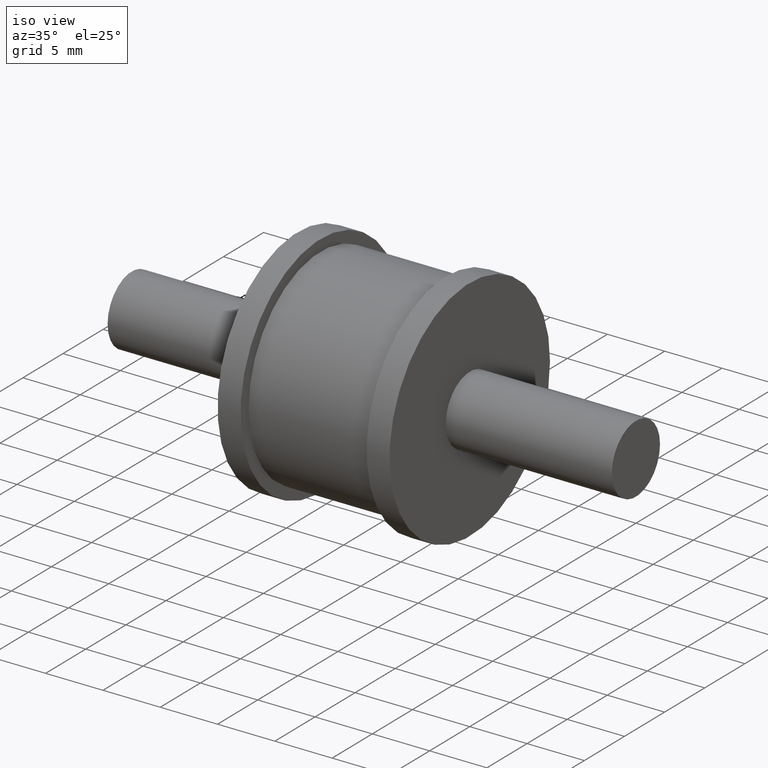
[diagram: clean part render]
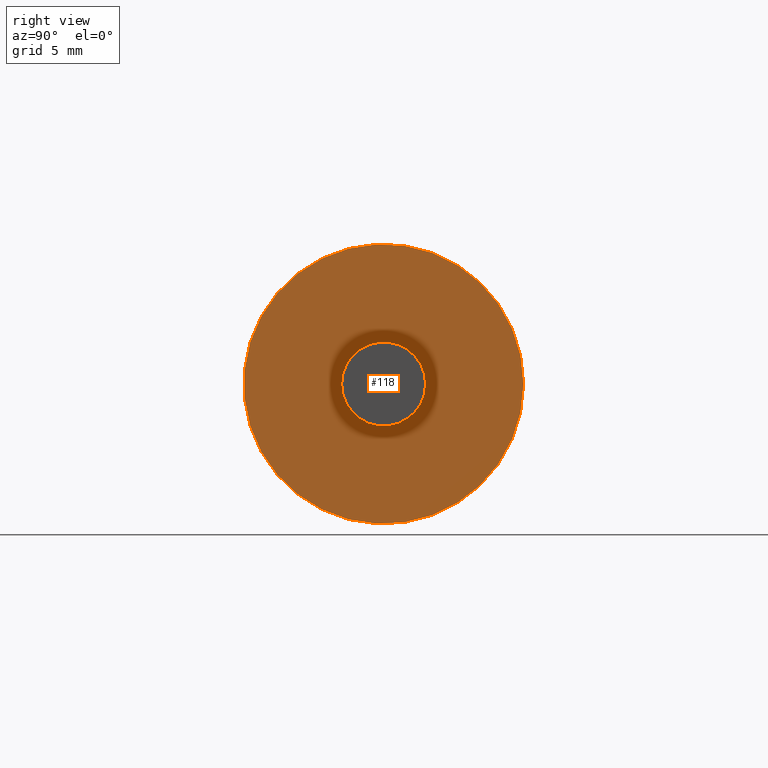
[diagram: tour spotlight — one face highlighted and labeled with its STEP entity id]
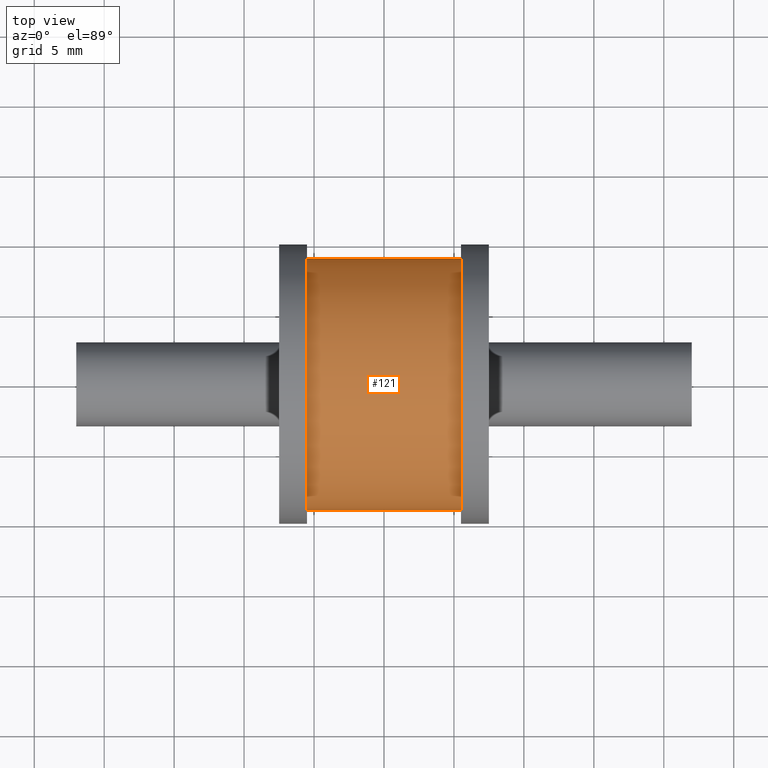
[diagram: tour spotlight — one face highlighted and labeled with its STEP entity id]
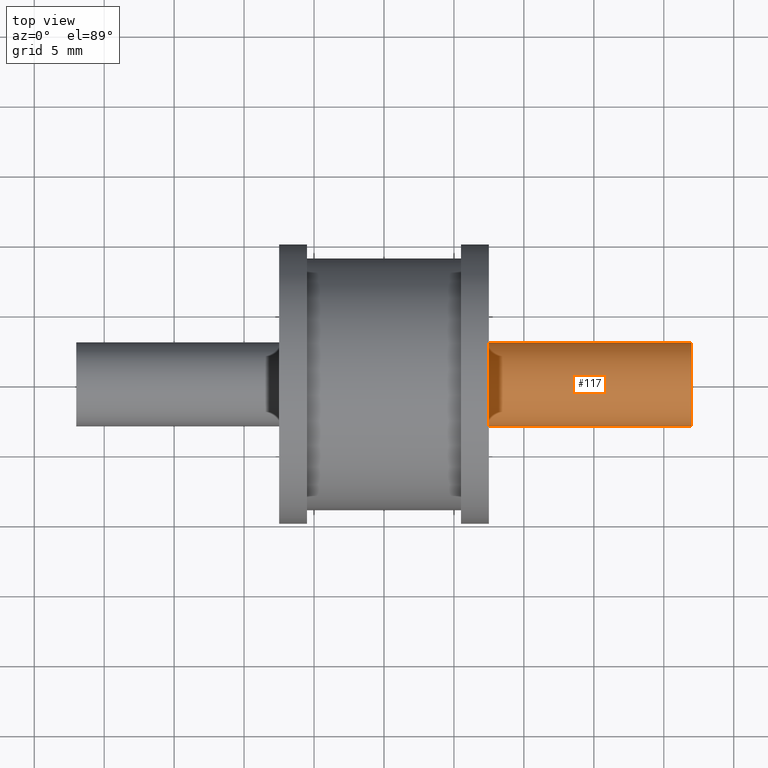
[diagram: tour spotlight — one face highlighted and labeled with its STEP entity id]
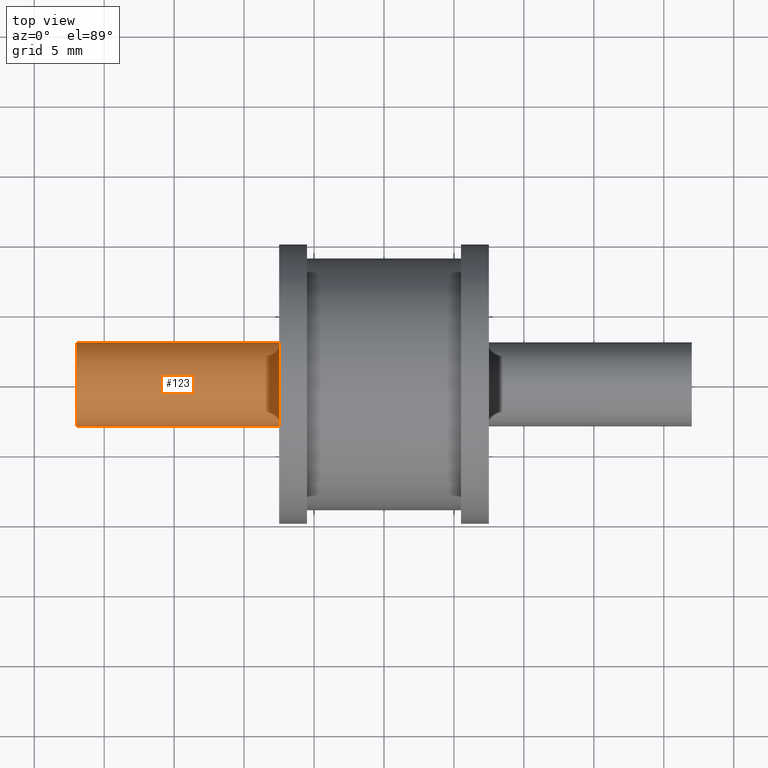
[diagram: tour spotlight — one face highlighted and labeled with its STEP entity id]
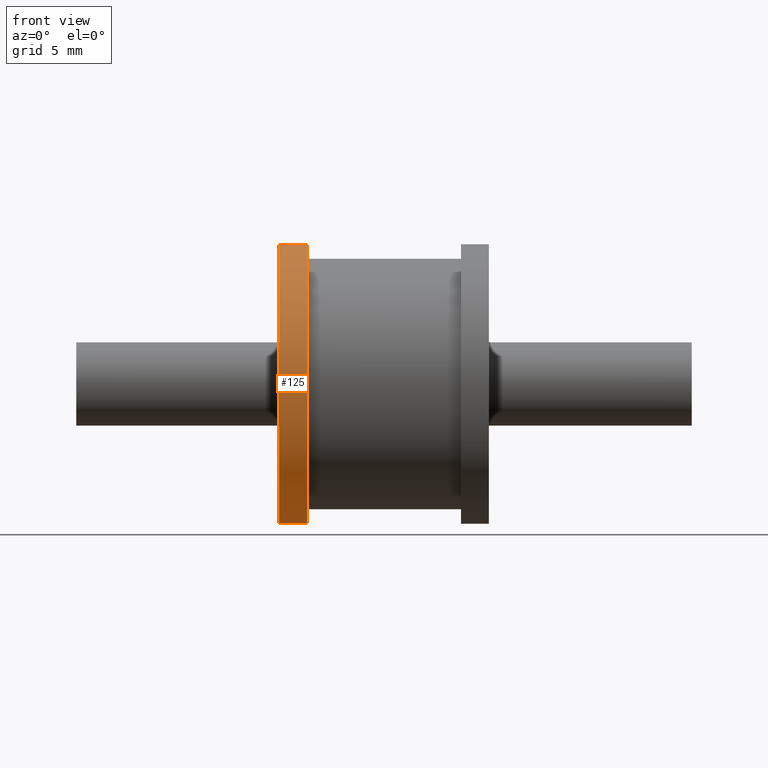
[diagram: tour spotlight — one face highlighted and labeled with its STEP entity id]
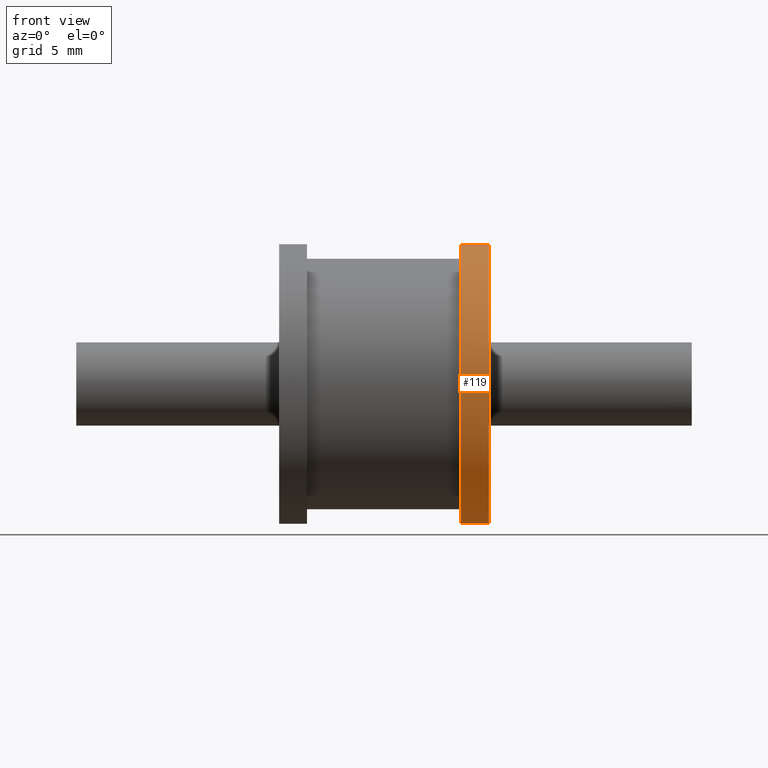
[diagram: tour spotlight — one face highlighted and labeled with its STEP entity id]
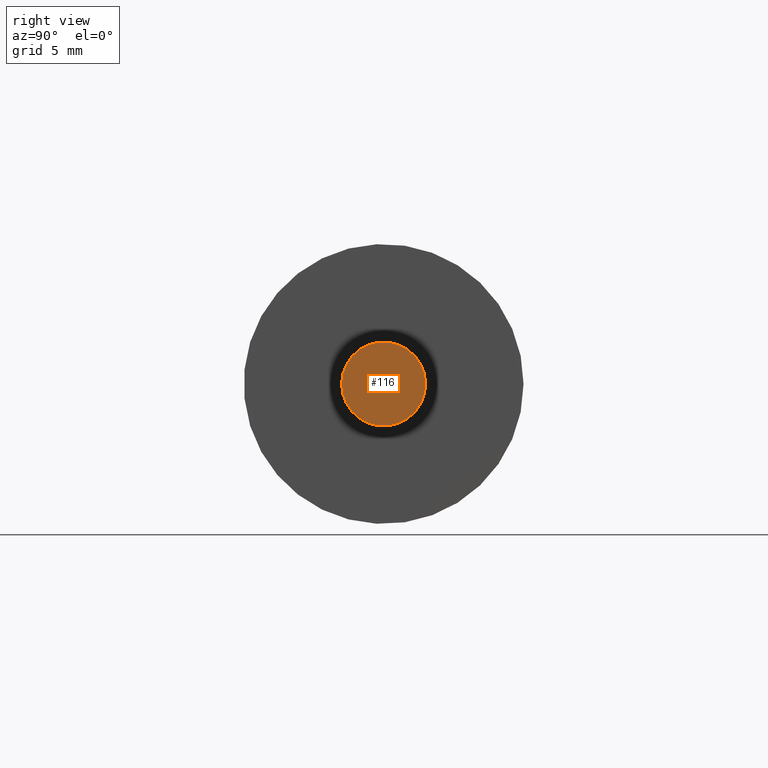
[diagram: tour spotlight — one face highlighted and labeled with its STEP entity id]
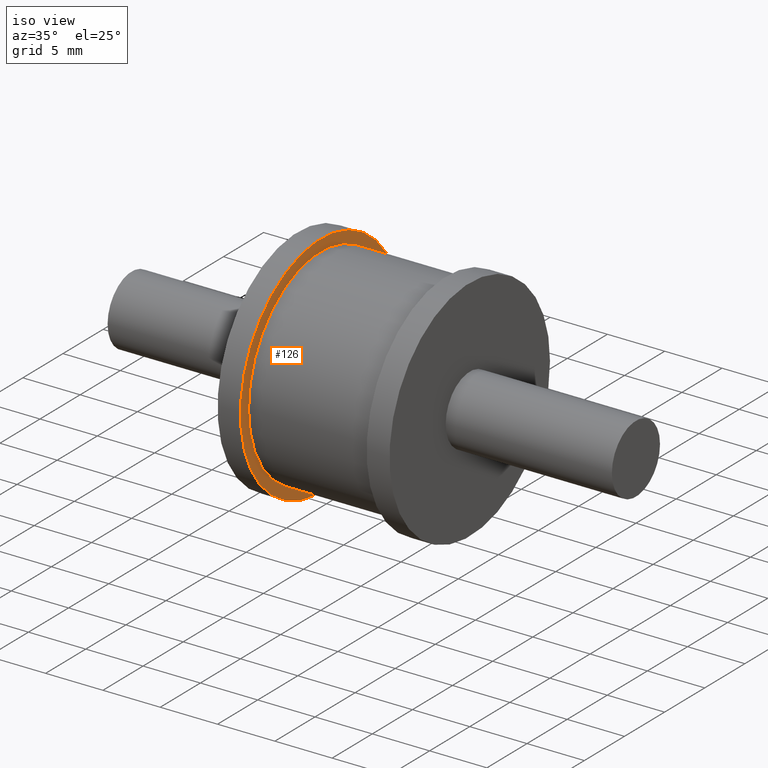
[diagram: tour spotlight — one face highlighted and labeled with its STEP entity id]
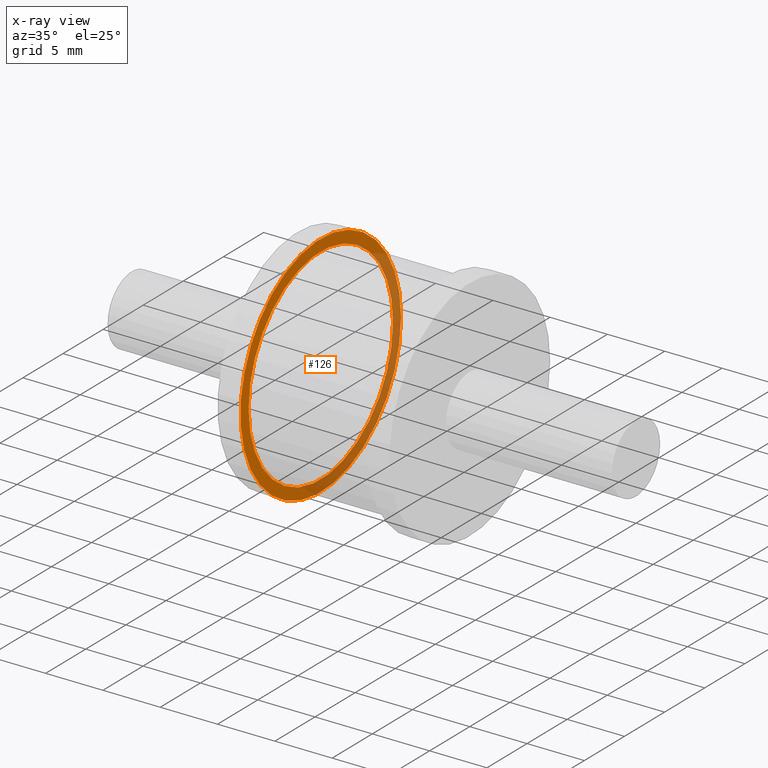
[diagram: x-ray of the same camera — body ghosted, this tour face saturated]
A machine part: a face-by-face anatomy tour. The part has 11 B-rep faces; the first image is the clean iso view, then the 8 largest visible faces are spotlighted one at a time (largest first), each with its STEP entity span.

Face 1 — right view, entity #118. In plain terms, the highlighted planar face has unit normal (-1, -0, 0).
Definition (entity closure, byte-faithful):
#16=FACE_BOUND('',#44,.T.);
#31=FACE_OUTER_BOUND('',#43,.T.);
#43=EDGE_LOOP('',(#93));
#44=EDGE_LOOP('',(#94));
#61=CIRCLE('',#132,3.);
#62=CIRCLE('',#134,10.);
#71=VERTEX_POINT('',#199);
#72=VERTEX_POINT('',#202);
#81=EDGE_CURVE('',#71,#71,#61,.T.);
#82=EDGE_CURVE('',#72,#72,#62,.T.);
#93=ORIENTED_EDGE('',*,*,#82,.T.);
#94=ORIENTED_EDGE('',*,*,#81,.F.);
#111=PLANE('',#133);
#118=ADVANCED_FACE('',(#31,#16),#111,.F.);
#132=AXIS2_PLACEMENT_3D('',#200,#158,#159);
#133=AXIS2_PLACEMENT_3D('',#201,#160,#161);
#134=AXIS2_PLACEMENT_3D('',#203,#162,#163);
#158=DIRECTION('center_axis',(1.,1.26687599911795E-16,0.));
#159=DIRECTION('ref_axis',(0.,0.,-1.));
#160=DIRECTION('center_axis',(-1.,-1.26687599911795E-16,0.));
#161=DIRECTION('ref_axis',(0.,0.,1.));
#162=DIRECTION('center_axis',(1.,1.26687599911795E-16,0.));
#163=DIRECTION('ref_axis',(0.,0.,-1.));
#199=CARTESIAN_POINT('',(7.5,3.,0.));
#200=CARTESIAN_POINT('Origin',(7.5,3.73728419739796E-15,0.));
#201=CARTESIAN_POINT('Origin',(7.5,10.,0.));
#202=CARTESIAN_POINT('',(7.5,10.,0.));
#203=CARTESIAN_POINT('Origin',(7.5,3.73728419739796E-15,0.));

Face 2 — top view, entity #121. In plain terms, the highlighted cylindrical surface (bore or boss wall) has radius 9 mm, axis along (1, 0, 0).
Definition (entity closure, byte-faithful):
#19=FACE_BOUND('',#50,.T.);
#26=CYLINDRICAL_SURFACE('',#139,9.);
#34=FACE_OUTER_BOUND('',#49,.T.);
#49=EDGE_LOOP('',(#99));
#50=EDGE_LOOP('',(#100));
#64=CIRCLE('',#138,9.);
#65=CIRCLE('',#140,9.);
#74=VERTEX_POINT('',#208);
#75=VERTEX_POINT('',#211);
#84=EDGE_CURVE('',#74,#74,#64,.T.);
#85=EDGE_CURVE('',#75,#75,#65,.T.);
#99=ORIENTED_EDGE('',*,*,#84,.F.);
#100=ORIENTED_EDGE('',*,*,#85,.T.);
#121=ADVANCED_FACE('',(#34,#19),#26,.T.);
#138=AXIS2_PLACEMENT_3D('',#209,#170,#171);
#139=AXIS2_PLACEMENT_3D('',#210,#172,#173);
#140=AXIS2_PLACEMENT_3D('',#212,#174,#175);
#170=DIRECTION('center_axis',(1.,1.26687599911795E-16,0.));
#171=DIRECTION('ref_axis',(0.,0.,-1.));
#172=DIRECTION('center_axis',(1.,1.26687599911795E-16,0.));
#173=DIRECTION('ref_axis',(0.,1.,0.));
#174=DIRECTION('center_axis',(1.,1.26687599911795E-16,0.));
#175=DIRECTION('ref_axis',(0.,0.,-1.));
#208=CARTESIAN_POINT('',(5.5,9.,0.));
#209=CARTESIAN_POINT('Origin',(5.5,3.48390899757437E-15,0.));
#210=CARTESIAN_POINT('Origin',(-3.75,2.31204869839026E-15,0.));
#211=CARTESIAN_POINT('',(-5.5,9.,0.));
#212=CARTESIAN_POINT('Origin',(-5.5,2.09034539854462E-15,0.));

Face 3 — top view, entity #117. In plain terms, the highlighted cylindrical surface (bore or boss wall) has radius 3 mm, axis along (1, 0, 0).
Definition (entity closure, byte-faithful):
#15=FACE_BOUND('',#42,.T.);
#24=CYLINDRICAL_SURFACE('',#131,3.);
#30=FACE_OUTER_BOUND('',#41,.T.);
#41=EDGE_LOOP('',(#91));
#42=EDGE_LOOP('',(#92));
#60=CIRCLE('',#130,3.);
#61=CIRCLE('',#132,3.);
#70=VERTEX_POINT('',#196);
#71=VERTEX_POINT('',#199);
#80=EDGE_CURVE('',#70,#70,#60,.T.);
#81=EDGE_CURVE('',#71,#71,#61,.T.);
#91=ORIENTED_EDGE('',*,*,#80,.F.);
#92=ORIENTED_EDGE('',*,*,#81,.T.);
#117=ADVANCED_FACE('',(#30,#15),#24,.T.);
#130=AXIS2_PLACEMENT_3D('',#197,#154,#155);
#131=AXIS2_PLACEMENT_3D('',#198,#156,#157);
#132=AXIS2_PLACEMENT_3D('',#200,#158,#159);
#154=DIRECTION('center_axis',(1.,1.26687599911795E-16,0.));
#155=DIRECTION('ref_axis',(0.,0.,-1.));
#156=DIRECTION('center_axis',(1.,1.26687599911795E-16,0.));
#157=DIRECTION('ref_axis',(-1.26687599911795E-16,1.,0.));
#158=DIRECTION('center_axis',(1.,1.26687599911795E-16,0.));
#159=DIRECTION('ref_axis',(0.,0.,-1.));
#196=CARTESIAN_POINT('',(22.,3.00000000000001,0.));
#197=CARTESIAN_POINT('Origin',(22.,5.57425439611899E-15,0.));
#198=CARTESIAN_POINT('Origin',(14.75,4.65576929675847E-15,0.));
#199=CARTESIAN_POINT('',(7.5,3.,0.));
#200=CARTESIAN_POINT('Origin',(7.5,3.73728419739796E-15,0.));

Face 4 — top view, entity #123. In plain terms, the highlighted cylindrical surface (bore or boss wall) has radius 3 mm, axis along (1, 0, 0).
Definition (entity closure, byte-faithful):
#20=FACE_BOUND('',#53,.T.);
#27=CYLINDRICAL_SURFACE('',#143,3.);
#36=FACE_OUTER_BOUND('',#52,.T.);
#52=EDGE_LOOP('',(#102));
#53=EDGE_LOOP('',(#103));
#66=CIRCLE('',#142,3.);
#67=CIRCLE('',#144,3.);
#76=VERTEX_POINT('',#214);
#77=VERTEX_POINT('',#217);
#86=EDGE_CURVE('',#76,#76,#66,.T.);
#87=EDGE_CURVE('',#77,#77,#67,.T.);
#102=ORIENTED_EDGE('',*,*,#86,.T.);
#103=ORIENTED_EDGE('',*,*,#87,.F.);
#123=ADVANCED_FACE('',(#36,#20),#27,.T.);
#142=AXIS2_PLACEMENT_3D('',#215,#178,#179);
#143=AXIS2_PLACEMENT_3D('',#216,#180,#181);
#144=AXIS2_PLACEMENT_3D('',#218,#182,#183);
#178=DIRECTION('center_axis',(1.,1.26687599911795E-16,0.));
#179=DIRECTION('ref_axis',(0.,0.,-1.));
#180=DIRECTION('center_axis',(1.,1.26687599911795E-16,0.));
#181=DIRECTION('ref_axis',(-1.26687599911795E-16,1.,0.));
#182=DIRECTION('center_axis',(1.,1.26687599911795E-16,0.));
#183=DIRECTION('ref_axis',(0.,0.,-1.));
#214=CARTESIAN_POINT('',(-22.,3.,0.));
#215=CARTESIAN_POINT('Origin',(-22.,4.93038065763132E-31,0.));
#216=CARTESIAN_POINT('Origin',(-14.75,9.18485099360515E-16,0.));
#217=CARTESIAN_POINT('',(-7.5,3.,0.));
#218=CARTESIAN_POINT('Origin',(-7.5,1.83697019872103E-15,0.));

Face 5 — front view, entity #125. In plain terms, the highlighted cylindrical surface (bore or boss wall) has radius 10 mm, axis along (1, 0, 0).
Definition (entity closure, byte-faithful):
#22=FACE_BOUND('',#57,.T.);
#28=CYLINDRICAL_SURFACE('',#147,10.);
#38=FACE_OUTER_BOUND('',#56,.T.);
#56=EDGE_LOOP('',(#106));
#57=EDGE_LOOP('',(#107));
#68=CIRCLE('',#146,10.);
#69=CIRCLE('',#148,10.);
#78=VERTEX_POINT('',#220);
#79=VERTEX_POINT('',#223);
#88=EDGE_CURVE('',#78,#78,#68,.T.);
#89=EDGE_CURVE('',#79,#79,#69,.T.);
#106=ORIENTED_EDGE('',*,*,#88,.T.);
#107=ORIENTED_EDGE('',*,*,#89,.F.);
#125=ADVANCED_FACE('',(#38,#22),#28,.T.);
#146=AXIS2_PLACEMENT_3D('',#221,#186,#187);
#147=AXIS2_PLACEMENT_3D('',#222,#188,#189);
#148=AXIS2_PLACEMENT_3D('',#224,#190,#191);
#186=DIRECTION('center_axis',(1.,1.26687599911795E-16,0.));
#187=DIRECTION('ref_axis',(0.,0.,-1.));
#188=DIRECTION('center_axis',(1.,1.26687599911795E-16,0.));
#189=DIRECTION('ref_axis',(-1.2335811384724E-16,1.,0.));
#190=DIRECTION('center_axis',(1.,1.26687599911795E-16,0.));
#191=DIRECTION('ref_axis',(0.,0.,-1.));
#220=CARTESIAN_POINT('',(-7.5,10.,0.));
#221=CARTESIAN_POINT('Origin',(-7.5,1.83697019872103E-15,0.));
#222=CARTESIAN_POINT('Origin',(-6.5,1.96365779863282E-15,0.));
#223=CARTESIAN_POINT('',(-5.5,10.,0.));
#224=CARTESIAN_POINT('Origin',(-5.5,2.09034539854462E-15,0.));

Face 6 — front view, entity #119. In plain terms, the highlighted cylindrical surface (bore or boss wall) has radius 10 mm, axis along (1, 0, 0).
Definition (entity closure, byte-faithful):
#17=FACE_BOUND('',#46,.T.);
#25=CYLINDRICAL_SURFACE('',#135,10.);
#32=FACE_OUTER_BOUND('',#45,.T.);
#45=EDGE_LOOP('',(#95));
#46=EDGE_LOOP('',(#96));
#62=CIRCLE('',#134,10.);
#63=CIRCLE('',#136,10.);
#72=VERTEX_POINT('',#202);
#73=VERTEX_POINT('',#205);
#82=EDGE_CURVE('',#72,#72,#62,.T.);
#83=EDGE_CURVE('',#73,#73,#63,.T.);
#95=ORIENTED_EDGE('',*,*,#82,.F.);
#96=ORIENTED_EDGE('',*,*,#83,.T.);
#119=ADVANCED_FACE('',(#32,#17),#25,.T.);
#134=AXIS2_PLACEMENT_3D('',#203,#162,#163);
#135=AXIS2_PLACEMENT_3D('',#204,#164,#165);
#136=AXIS2_PLACEMENT_3D('',#206,#166,#167);
#162=DIRECTION('center_axis',(1.,1.26687599911795E-16,0.));
#163=DIRECTION('ref_axis',(0.,0.,-1.));
#164=DIRECTION('center_axis',(1.,1.26687599911795E-16,0.));
#165=DIRECTION('ref_axis',(-1.30017085976351E-16,1.,0.));
#166=DIRECTION('center_axis',(1.,1.26687599911795E-16,0.));
#167=DIRECTION('ref_axis',(0.,0.,-1.));
#202=CARTESIAN_POINT('',(7.5,10.,0.));
#203=CARTESIAN_POINT('Origin',(7.5,3.73728419739796E-15,0.));
#204=CARTESIAN_POINT('Origin',(6.5,3.61059659748616E-15,0.));
#205=CARTESIAN_POINT('',(5.5,10.,0.));
#206=CARTESIAN_POINT('Origin',(5.5,3.48390899757437E-15,0.));

Face 7 — right view, entity #116. In plain terms, the highlighted planar face has unit normal (-1, -0, 0).
Definition (entity closure, byte-faithful):
#29=FACE_OUTER_BOUND('',#40,.T.);
#40=EDGE_LOOP('',(#90));
#60=CIRCLE('',#130,3.);
#70=VERTEX_POINT('',#196);
#80=EDGE_CURVE('',#70,#70,#60,.T.);
#90=ORIENTED_EDGE('',*,*,#80,.T.);
#110=PLANE('',#129);
#116=ADVANCED_FACE('',(#29),#110,.F.);
#129=AXIS2_PLACEMENT_3D('',#195,#152,#153);
#130=AXIS2_PLACEMENT_3D('',#197,#154,#155);
#152=DIRECTION('center_axis',(-1.,-1.26687599911795E-16,0.));
#153=DIRECTION('ref_axis',(0.,0.,1.));
#154=DIRECTION('center_axis',(1.,1.26687599911795E-16,0.));
#155=DIRECTION('ref_axis',(0.,0.,-1.));
#195=CARTESIAN_POINT('Origin',(22.,3.00000000000001,0.));
#196=CARTESIAN_POINT('',(22.,3.00000000000001,0.));
#197=CARTESIAN_POINT('Origin',(22.,5.57425439611899E-15,0.));

Face 8 — iso view, entity #126. An x-ray twin of the same camera follows (body ghosted, this face saturated) — the face is partly hidden behind the body. In plain terms, the highlighted planar face has unit normal (1, 0, 0).
Definition (entity closure, byte-faithful):
#23=FACE_BOUND('',#59,.T.);
#39=FACE_OUTER_BOUND('',#58,.T.);
#58=EDGE_LOOP('',(#108));
#59=EDGE_LOOP('',(#109));
#65=CIRCLE('',#140,9.);
#69=CIRCLE('',#148,10.);
#75=VERTEX_POINT('',#211);
#79=VERTEX_POINT('',#223);
#85=EDGE_CURVE('',#75,#75,#65,.T.);
#89=EDGE_CURVE('',#79,#79,#69,.T.);
#108=ORIENTED_EDGE('',*,*,#89,.T.);
#109=ORIENTED_EDGE('',*,*,#85,.F.);
#115=PLANE('',#149);
#126=ADVANCED_FACE('',(#39,#23),#115,.T.);
#140=AXIS2_PLACEMENT_3D('',#212,#174,#175);
#148=AXIS2_PLACEMENT_3D('',#224,#190,#191);
#149=AXIS2_PLACEMENT_3D('',#225,#192,#193);
#174=DIRECTION('center_axis',(1.,1.26687599911795E-16,0.));
#175=DIRECTION('ref_axis',(0.,0.,-1.));
#190=DIRECTION('center_axis',(1.,1.26687599911795E-16,0.));
#191=DIRECTION('ref_axis',(0.,0.,-1.));
#192=DIRECTION('center_axis',(1.,1.26687599911795E-16,0.));
#193=DIRECTION('ref_axis',(0.,0.,-1.));
#211=CARTESIAN_POINT('',(-5.5,9.,0.));
#212=CARTESIAN_POINT('Origin',(-5.5,2.09034539854462E-15,0.));
#223=CARTESIAN_POINT('',(-5.5,10.,0.));
#224=CARTESIAN_POINT('Origin',(-5.5,2.09034539854462E-15,0.));
#225=CARTESIAN_POINT('Origin',(-5.5,9.,0.));